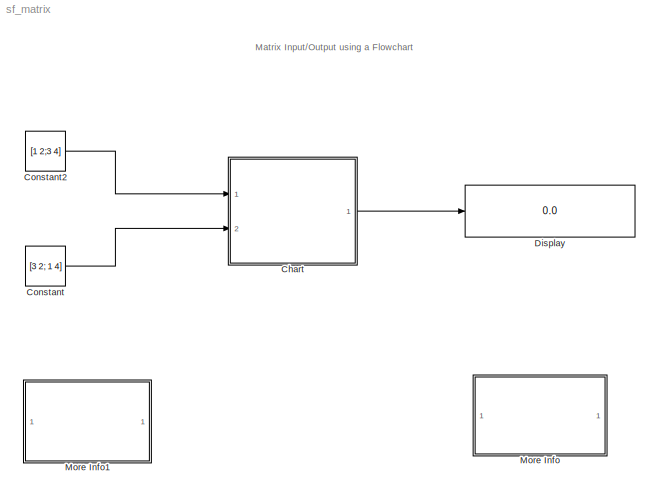
MODEL sf_matrix
KIND model
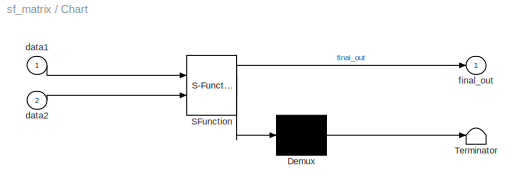
BLOCK [SubSystem] Chart
  MaskDescription = Stateflow diagram
  MaskDisplay = plot(sf('Private','sfblk','xIcon'),sf('Private','sfblk','yIcon'));text(0.5,0,sf('Private', 'sfblk', 'tIcon'),'HorizontalAl','Center','VerticalAl','Bottom');
  MaskIconFrame = off
  MaskIconOpaque = off
  MaskIconRotate = none
  MaskIconUnits = autoscale
  MaskSelfModifiable = on
  MaskType = Stateflow
  MinAlgLoopOccurrences = off
  Ports = [2, 1]
  PropExecContextAcrossSSBoundary = on
  RTWSystemCode = Auto
  TreatAsAtomicUnit = off
BLOCK [Demux] Chart/ Demux 
  Outputs = 1
  Ports = [1, 1]
BLOCK [S-Function] Chart/ SFunction 
  FunctionName = sf_sfun
  PortCounts = [2 2]
  Ports = [2, 2]
  Tag = Stateflow S-Function sf_matrix 1
BLOCK [Terminator] Chart/ Terminator 
BLOCK [Inport] Chart/data1
  IconDisplay = Port number
  LatchInput = off
  Port = 1
BLOCK [Inport] Chart/data2
  IconDisplay = Port number
  LatchInput = off
  Port = 2
BLOCK [Outport] Chart/final_out
  IconDisplay = Port number
BLOCK [Constant] Constant
  Value = [3 2; 1 4]
  VectorParams1D = off
BLOCK [Constant] Constant2
  Value = [1 2;3 4]
  VectorParams1D = off
BLOCK [Display] Display
  Decimation = 1
  Ports = [1]
BLOCK [SubSystem] More Info
  MaskDisplay = disp('Double click\\nhere for\\ninformation on\\nthis demonstration')
  MaskIconFrame = on
  MaskIconOpaque = on
  MaskIconRotate = none
  MaskIconUnits = autoscale
  MinAlgLoopOccurrences = off
  Ports = []
  PropExecContextAcrossSSBoundary = on
  RTWSystemCode = Auto
  TreatAsAtomicUnit = off
BLOCK [SubSystem] More Info1
  MaskDisplay = disp('Double click\\nhere for<path> Help')
  MaskIconFrame = on
  MaskIconOpaque = on
  MaskIconRotate = none
  MaskIconUnits = autoscale
  MinAlgLoopOccurrences = off
  OpenFcn = simcad(bdroot);
  Ports = []
  PropExecContextAcrossSSBoundary = on
  RTWSystemCode = Auto
  TreatAsAtomicUnit = off
ANNOTATION (root): Matrix Input/Output using a Flowchart\n
ANNOTATION More Info: Matrix Input/Output Demonstration
ANNOTATION More Info: The demo illustrates the ability of Stateflow to accept matrix input signals from Simulink and also\noutput matrix signals to Simulink. In this particular example, we are multiplying a [2x2] matrix with another\n[2x2] matrix to obtain a [2x2] output matrix. A flow chart is used to perform the calculations which is \nalso the reason why the length of the simulation time is only one timestep.\n\nThe...<+297ch>
LINE Chart/ Demux :1 -> Chart/ Terminator :1
LINE Chart/ SFunction :1 -> Chart/ Demux :1
LINE Chart/ SFunction :2 -> Chart/final_out:1
LINE Chart/data1:1 -> Chart/ SFunction :1
LINE Chart/data2:1 -> Chart/ SFunction :2
LINE Chart:1 -> Display:1
LINE Constant2:1 -> Chart:1
LINE Constant:1 -> Chart:2
CHART Chart states=1 transitions=5
  STATE_LABEL 'Equivalent C-Code:\\n\\nfor(i=0;i<2;i++)\\n   for(j=0;j<2;j++)\\n       {\\n         int final_out[2][2];\\n         final_out[i][j]=(data1[i][0]*data2[0][j])+(data1[i][1]+data2[1][j]);\\n       }'
note: 1 file-system path scrubbed to <path> (not preserved elsewhere — flat text is the only slx artifact)
